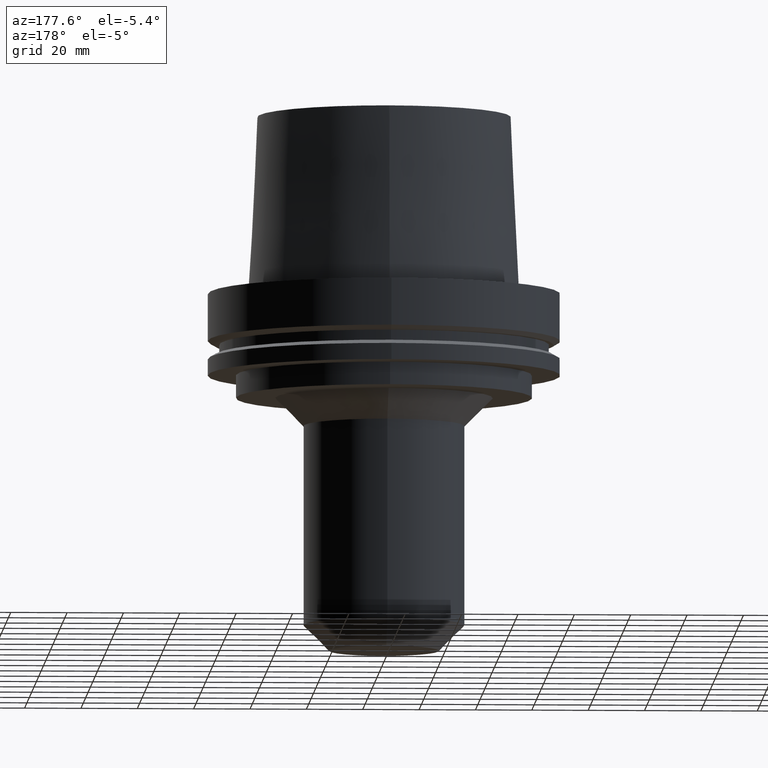
[diagram: clean part render]
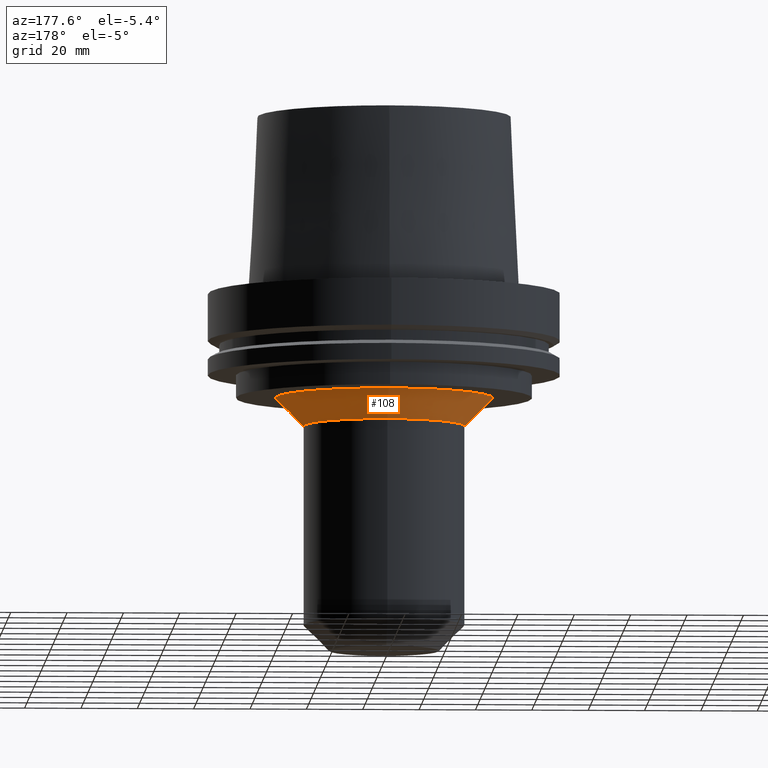
[diagram: same view with one face highlighted and labeled with its STEP entity id]
A machine part, auxiliary view. The second image highlights one B-rep face of the part: STEP entity #108.
In plain terms, the highlighted conical surface has half-angle 45 deg.
Its self-contained STEP definition (entity closure, byte-faithful):
#103=EDGE_CURVE('Unnamed[1]',#230,#230,#231,.T.);
#105=EDGE_CURVE('Unnamed[1]',#233,#233,#234,.T.);
#108=ADVANCED_FACE('Unnamed[1]',(#237,#238),#239,.T.);
#230=VERTEX_POINT('',#387);
#231=CIRCLE('',#388,38.6);
#233=VERTEX_POINT('',#391);
#234=CIRCLE('',#392,28.6);
#237=FACE_BOUND('',#396,.T.);
#238=FACE_BOUND('',#397,.T.);
#239=CONICAL_SURFACE('',#398,33.6,0.785398163397306);
#387=CARTESIAN_POINT('',(2.26559657842261E-015,38.6,-37.0));
#388=AXIS2_PLACEMENT_3D('',#545,#546,#547);
#391=CARTESIAN_POINT('',(2.87791997799646E-015,28.6,-47.0000000000029));
#392=AXIS2_PLACEMENT_3D('',#548,#549,#550);
#396=EDGE_LOOP('',(#552));
#397=EDGE_LOOP('',(#553));
#398=AXIS2_PLACEMENT_3D('',#554,#555,#556);
#545=CARTESIAN_POINT('',(2.26559657842261E-015,4.53119315684521E-015,-37.0));
#546=DIRECTION('',(6.12323399573677E-017,1.22464679914774E-016,-1.0));
#547=DIRECTION('',(-1.23259516440802E-032,1.0,1.22464679914774E-016));
#548=CARTESIAN_POINT('',(2.87791997799646E-015,5.75583995599291E-015,-47.0000000000029));
#549=DIRECTION('',(6.12323399573677E-017,1.22464679914765E-016,-1.0));
#550=DIRECTION('',(-1.23259516440808E-032,1.0,1.22464679914765E-016));
#552=ORIENTED_EDGE('',*,*,#105,.F.);
#553=ORIENTED_EDGE('',*,*,#103,.T.);
#554=CARTESIAN_POINT('',(2.57175827820953E-015,5.14351655641906E-015,-42.0000000000015));
#555=DIRECTION('',(-6.12323399573676E-017,-1.2246467991477E-016,1.0));
#556=DIRECTION('',(-1.23259516440804E-032,1.0,1.2246467991477E-016));